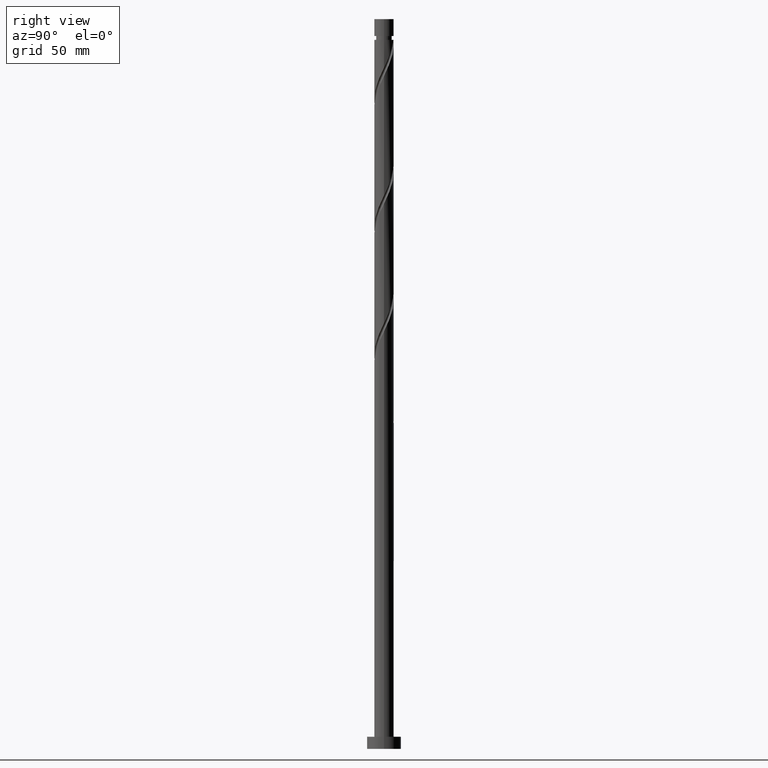
[diagram: clean part render]
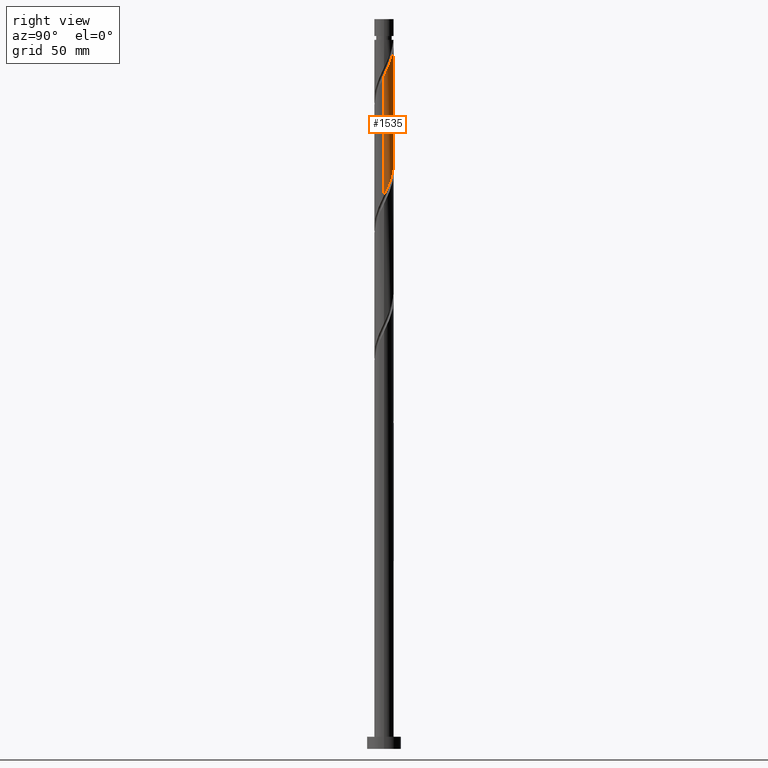
[diagram: same view with one face highlighted and labeled with its STEP entity id]
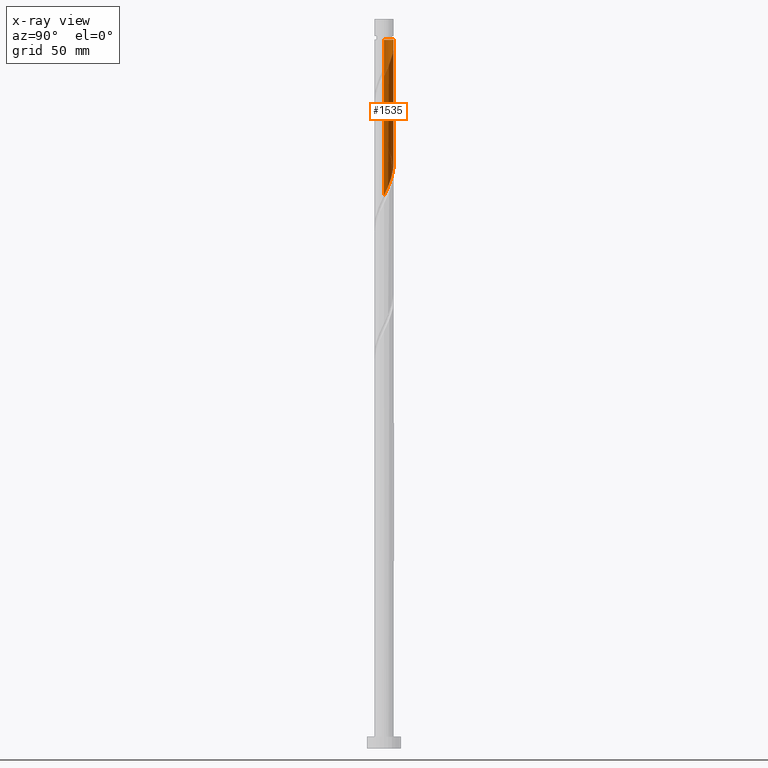
[diagram: x-ray of the same camera — body ghosted, the highlighted face saturated]
A machine part, right view. The second image highlights one B-rep face of the part: STEP entity #1535.
The next image is the same camera in x-ray: the body ghosted, the highlighted face saturated — about 0% of this face is hidden behind the body in this view.
In plain terms, the highlighted cylindrical surface (edge-blend (fillet) strip) has radius 4 mm, axis along (-0, -0, -1).
Its self-contained STEP definition (entity closure, byte-faithful):
#2 = CARTESIAN_POINT ( 'NONE',  ( -3.186430866508028092, 2.417986421170494449, 248.3291729475623981 ) ) ;
#11 = VERTEX_POINT ( 'NONE', #677 ) ;
#79 = CARTESIAN_POINT ( 'NONE',  ( 3.458872505219861448, 2.058961887652578149, 281.1416729475623697 ) ) ;
#80 = EDGE_CURVE ( 'NONE', #1191, #1404, #1004, .T. ) ;
#100 = DIRECTION ( 'NONE',  ( -1.000000000000000000, 0.000000000000000000, 0.000000000000000000 ) ) ;
#102 =( BOUNDED_CURVE ( )  B_SPLINE_CURVE ( 2, ( #1841, #362, #979, #1138, #223, #79, #1703, #666, #1114, #388, #409, #236, #399, #836, #989, #260, #1435 ),
 .UNSPECIFIED., .F., .T. ) 
 B_SPLINE_CURVE_WITH_KNOTS ( ( 3, 2, 2, 2, 2, 2, 2, 2, 3 ),
 ( 0.6795303401299217505, 0.6875000000000000000, 0.6964285714285713969, 0.7053571428571427937, 0.7142857142857144126, 0.7232142857142858094, 0.7321428571428573173, 0.7410714285714287142, 0.7500000000000001110 ),
 .UNSPECIFIED. ) 
 CURVE ( )  GEOMETRIC_REPRESENTATION_ITEM ( )  RATIONAL_B_SPLINE_CURVE ( ( 0.9079949616362098519, 0.9039886423360724566, 0.9090909090909393697, 0.9033747362666143532, 0.9090909090909393697, 0.9033747362666143532, 0.9090909090909393697, 0.9033747362666143532, 0.9090909090909393697, 0.9033747362666143532, 0.9090909090909393697, 0.9033747362666143532, 0.9090909090909393697, 0.9033747362666143532, 0.9090909090909393697, 0.9033747362666142422, 0.9090909090909394807 ) ) 
 REPRESENTATION_ITEM ( '' )  );
#133 = EDGE_CURVE ( 'NONE', #1191, #1650, #344, .T. ) ;
#134 = CARTESIAN_POINT ( 'NONE',  ( -3.830313472238014771, 1.237667874093733245, 251.1416729475623413 ) ) ;
#147 = CARTESIAN_POINT ( 'NONE',  ( 3.355809096668277203, 2.222986362731491639, 232.3916729475624265 ) ) ;
#160 = AXIS2_PLACEMENT_3D ( 'NONE', #1424, #1034, #100 ) ;
#177 = DIRECTION ( 'NONE',  ( -0.000000000000000000, -0.000000000000000000, -1.000000000000000000 ) ) ;
#223 = CARTESIAN_POINT ( 'NONE',  ( 3.644592988728941219, 1.648314880873156474, 280.2041729475624265 ) ) ;
#236 = CARTESIAN_POINT ( 'NONE',  ( 1.420513679056762957, 3.766332957902740475, 286.7666729475623697 ) ) ;
#252 = AXIS2_PLACEMENT_3D ( 'NONE', #1388, #1836, #1359 ) ;
#260 = CARTESIAN_POINT ( 'NONE',  ( -0.3543120252768676703, 4.009686527761989971, 290.5166729475624265 ) ) ;
#270 = CARTESIAN_POINT ( 'NONE',  ( 4.000000000000000000, 4.898587196589412829E-16, 300.0000000000000000 ) ) ;
#293 = CARTESIAN_POINT ( 'NONE',  ( 0.7959899496852991252, 3.919999999999999041, 238.9541729475623981 ) ) ;
#303 = CARTESIAN_POINT ( 'NONE',  ( 3.066410025678344198, 2.568487795263845186, 233.3291729475624265 ) ) ;
#340 = CARTESIAN_POINT ( 'NONE',  ( 3.998841842776559741, 0.09624924134434886813, 227.7041729475623981 ) ) ;
#344 = LINE ( 'NONE', #1533, #899 ) ;
#362 = CARTESIAN_POINT ( 'NONE',  ( 4.000000000000009770, 0.4020151261036697399, 277.4929269486199814 ) ) ;
#388 = CARTESIAN_POINT ( 'NONE',  ( 2.222986362731496524, 3.355809096668280755, 284.8916729475623697 ) ) ;
#398 = ORIENTED_EDGE ( 'NONE', *, *, #1244, .F. ) ;
#399 = CARTESIAN_POINT ( 'NONE',  ( 0.9836620935111639596, 3.877165057846941654, 287.7041729475624265 ) ) ;
#409 = CARTESIAN_POINT ( 'NONE',  ( 1.821750020894129518, 3.561071027285510837, 285.8291729475624834 ) ) ;
#426 = CARTESIAN_POINT ( 'NONE',  ( -4.000000000000000888, 0.4020151261036757906, 252.9154189465048717 ) ) ;
#444 = EDGE_CURVE ( 'NONE', #1253, #11, #839, .T. ) ;
#453 = CARTESIAN_POINT ( 'NONE',  ( -0.7959899496853422018, 3.920000000000002593, 291.4541729475627108 ) ) ;
#593 = CARTESIAN_POINT ( 'NONE',  ( -0.5468105079655622980, 3.987997157791136171, 241.7666729475624265 ) ) ;
#656 = ORIENTED_EDGE ( 'NONE', *, *, #133, .F. ) ;
#666 = CARTESIAN_POINT ( 'NONE',  ( 2.913989227796204950, 2.777010954688415634, 283.0166729475624265 ) ) ;
#677 = CARTESIAN_POINT ( 'NONE',  ( 3.999999999999998224, -2.634399026549366747E-15, 227.5036900254684440 ) ) ;
#697 = CARTESIAN_POINT ( 'NONE',  ( 4.000000000000005329, 2.238866028228908593E-17, 276.6546558696563238 ) ) ;
#720 = CARTESIAN_POINT ( 'NONE',  ( -2.568487795263846518, 3.066410025678343754, 246.4541729475624550 ) ) ;
#726 = CARTESIAN_POINT ( 'NONE',  ( -2.913989227796199621, 2.777010954688412081, 247.3916729475623697 ) ) ;
#733 = CARTESIAN_POINT ( 'NONE',  ( -1.420513679056759626, 3.766332957902735590, 243.6416729475623981 ) ) ;
#755 = EDGE_LOOP ( 'NONE', ( #398, #884, #1116, #656, #1788 ) ) ;
#756 = CARTESIAN_POINT ( 'NONE',  ( 3.999999999999998224, -2.634399026549366747E-15, 227.5036900254684724 ) ) ;
#775 = FACE_OUTER_BOUND ( 'NONE', #755, .T. ) ;
#801 = CARTESIAN_POINT ( 'NONE',  ( -3.999999999999976019, 0.000000000000000000, 291.4541729475624265 ) ) ;
#825 = DIRECTION ( 'NONE',  ( -0.000000000000000000, -0.000000000000000000, -1.000000000000000000 ) ) ;
#836 = CARTESIAN_POINT ( 'NONE',  ( 0.5468105079655646295, 3.987997157791141500, 288.6416729475624834 ) ) ;
#839 = LINE ( 'NONE', #270, #860 ) ;
#860 = VECTOR ( 'NONE', #825, 1000.000000000000000 ) ;
#869 = CARTESIAN_POINT ( 'NONE',  ( -3.644592988728935445, 1.648314880873155142, 250.2041729475624265 ) ) ;
#872 =( BOUNDED_CURVE ( )  B_SPLINE_CURVE ( 2, ( #1320, #426, #1030, #134, #869, #1477, #2, #726, #720, #1916, #1757, #733, #1307, #593, #1186, #1017, #293, #1622, #1170, #1763, #1469, #1923, #303, #147, #1781, #999, #909, #1376, #340, #1503, #756 ),
 .UNSPECIFIED., .F., .T. ) 
 B_SPLINE_CURVE_WITH_KNOTS ( ( 3, 2, 2, 2, 2, 2, 2, 2, 2, 2, 2, 2, 2, 2, 2, 3 ),
 ( 0.4295303401299218060, 0.4375000000000000000, 0.4464285714285714524, 0.4553571428571428492, 0.4642857142857143016, 0.4732142857142856984, 0.4821428571428571508, 0.4910714285714285476, 0.5000000000000000000, 0.5089285714285713969, 0.5178571428571429047, 0.5267857142857143016, 0.5357142857142856984, 0.5446428571428570953, 0.5535714285714286031, 0.5545303401299220836 ),
 .UNSPECIFIED. ) 
 CURVE ( )  GEOMETRIC_REPRESENTATION_ITEM ( )  RATIONAL_B_SPLINE_CURVE ( ( 0.9079949616362038567, 0.9039886423360664613, 0.9090909090909334855, 0.9033747362666083580, 0.9090909090909334855, 0.9033747362666083580, 0.9090909090909334855, 0.9033747362666083580, 0.9090909090909334855, 0.9033747362666083580, 0.9090909090909334855, 0.9033747362666083580, 0.9090909090909334855, 0.9033747362666083580, 0.9090909090909334855, 0.9033747362666083580, 0.9090909090909334855, 0.9033747362666083580, 0.9090909090909334855, 0.9033747362666083580, 0.9090909090909334855, 0.9033747362666083580, 0.9090909090909334855, 0.9033747362666083580, 0.9090909090909334855, 0.9033747362666083580, 0.9090909090909334855, 0.9033747362666083580, 0.9090909090909334855, 0.9084770030214752712, 0.9079949616362036346 ) ) 
 REPRESENTATION_ITEM ( '' )  );
#884 = ORIENTED_EDGE ( 'NONE', *, *, #444, .T. ) ;
#899 = VECTOR ( 'NONE', #177, 1000.000000000000000 ) ;
#909 = CARTESIAN_POINT ( 'NONE',  ( 3.877165057846936769, 0.9836620935111599628, 229.5791729475623981 ) ) ;
#965 = EDGE_CURVE ( 'NONE', #1650, #11, #872, .T. ) ;
#979 = CARTESIAN_POINT ( 'NONE',  ( 3.920000000000005258, 0.7959899496852977929, 278.3291729475624834 ) ) ;
#989 = CARTESIAN_POINT ( 'NONE',  ( 0.09624924134435140777, 3.998841842776565958, 289.5791729475625402 ) ) ;
#999 = CARTESIAN_POINT ( 'NONE',  ( 3.766332957902735590, 1.420513679056758516, 230.5166729475623981 ) ) ;
#1004 = CIRCLE ( 'NONE', #160, 3.999999999999976019 ) ;
#1017 = CARTESIAN_POINT ( 'NONE',  ( 0.3543120252768630074, 4.009686527761982866, 239.8916729475624550 ) ) ;
#1030 = CARTESIAN_POINT ( 'NONE',  ( -3.919999999999999041, 0.7959899496852982370, 252.0791729475623697 ) ) ;
#1034 = DIRECTION ( 'NONE',  ( -0.000000000000000000, -0.000000000000000000, -1.000000000000000000 ) ) ;
#1114 = CARTESIAN_POINT ( 'NONE',  ( 2.568487795263851847, 3.066410025678347306, 283.9541729475623697 ) ) ;
#1116 = ORIENTED_EDGE ( 'NONE', *, *, #965, .F. ) ;
#1138 = CARTESIAN_POINT ( 'NONE',  ( 3.830313472238021433, 1.237667874093733911, 279.2666729475623697 ) ) ;
#1170 = CARTESIAN_POINT ( 'NONE',  ( 1.648314880873155586, 3.644592988728935001, 237.0791729475623981 ) ) ;
#1186 = CARTESIAN_POINT ( 'NONE',  ( -0.09624924134434953427, 3.998841842776559741, 240.8291729475623981 ) ) ;
#1191 = VERTEX_POINT ( 'NONE', #801 ) ;
#1244 = EDGE_CURVE ( 'NONE', #1253, #1404, #102, .T. ) ;
#1253 = VERTEX_POINT ( 'NONE', #697 ) ;
#1307 = CARTESIAN_POINT ( 'NONE',  ( -0.9836620935111607400, 3.877165057846935436, 242.7041729475623981 ) ) ;
#1320 = CARTESIAN_POINT ( 'NONE',  ( -3.999999999999999112, 7.156908403571792636E-15, 253.7536900254685008 ) ) ;
#1359 = DIRECTION ( 'NONE',  ( -1.000000000000000000, 0.000000000000000000, 0.000000000000000000 ) ) ;
#1376 = CARTESIAN_POINT ( 'NONE',  ( 3.987997157791136171, 0.5468105079655612988, 228.6416729475624265 ) ) ;
#1388 = CARTESIAN_POINT ( 'NONE',  ( 0.000000000000000000, 0.000000000000000000, 300.0000000000000000 ) ) ;
#1404 = VERTEX_POINT ( 'NONE', #453 ) ;
#1424 = CARTESIAN_POINT ( 'NONE',  ( 0.000000000000000000, 0.000000000000000000, 291.4541729475624265 ) ) ;
#1435 = CARTESIAN_POINT ( 'NONE',  ( -0.7959899496853422018, 3.920000000000002593, 291.4541729475627108 ) ) ;
#1469 = CARTESIAN_POINT ( 'NONE',  ( 2.417986421170494893, 3.186430866508027648, 235.2041729475624265 ) ) ;
#1477 = CARTESIAN_POINT ( 'NONE',  ( -3.458872505219855675, 2.058961887652576817, 249.2666729475623981 ) ) ;
#1503 = CARTESIAN_POINT ( 'NONE',  ( 3.999999999999999112, 0.04813158866555920096, 227.6040527136935623 ) ) ;
#1533 = CARTESIAN_POINT ( 'NONE',  ( -4.000000000000000000, 0.000000000000000000, 300.0000000000000000 ) ) ;
#1535 = ADVANCED_FACE ( 'NONE', ( #775 ), #1690, .T. ) ;
#1622 = CARTESIAN_POINT ( 'NONE',  ( 1.237667874093734133, 3.830313472238014771, 238.0166729475624265 ) ) ;
#1650 = VERTEX_POINT ( 'NONE', #1880 ) ;
#1690 = CYLINDRICAL_SURFACE ( 'NONE', #252, 4.000000000000000000 ) ;
#1703 = CARTESIAN_POINT ( 'NONE',  ( 3.186430866508034754, 2.417986421170496669, 282.0791729475625402 ) ) ;
#1757 = CARTESIAN_POINT ( 'NONE',  ( -1.821750020894125521, 3.561071027285505952, 244.5791729475623697 ) ) ;
#1763 = CARTESIAN_POINT ( 'NONE',  ( 2.058961887652577261, 3.458872505219854787, 236.1416729475624265 ) ) ;
#1781 = CARTESIAN_POINT ( 'NONE',  ( 3.561071027285505952, 1.821750020894124855, 231.4541729475623981 ) ) ;
#1788 = ORIENTED_EDGE ( 'NONE', *, *, #80, .T. ) ;
#1836 = DIRECTION ( 'NONE',  ( -0.000000000000000000, -0.000000000000000000, -1.000000000000000000 ) ) ;
#1841 = CARTESIAN_POINT ( 'NONE',  ( 4.000000000000005329, 2.238866028228908593E-17, 276.6546558696563238 ) ) ;
#1880 = CARTESIAN_POINT ( 'NONE',  ( -3.999999999999999112, 7.156908403571792636E-15, 253.7536900254685008 ) ) ;
#1916 = CARTESIAN_POINT ( 'NONE',  ( -2.222986362731492527, 3.355809096668277203, 245.5166729475623981 ) ) ;
#1923 = CARTESIAN_POINT ( 'NONE',  ( 2.777010954688412969, 2.913989227796199177, 234.2666729475623697 ) ) ;